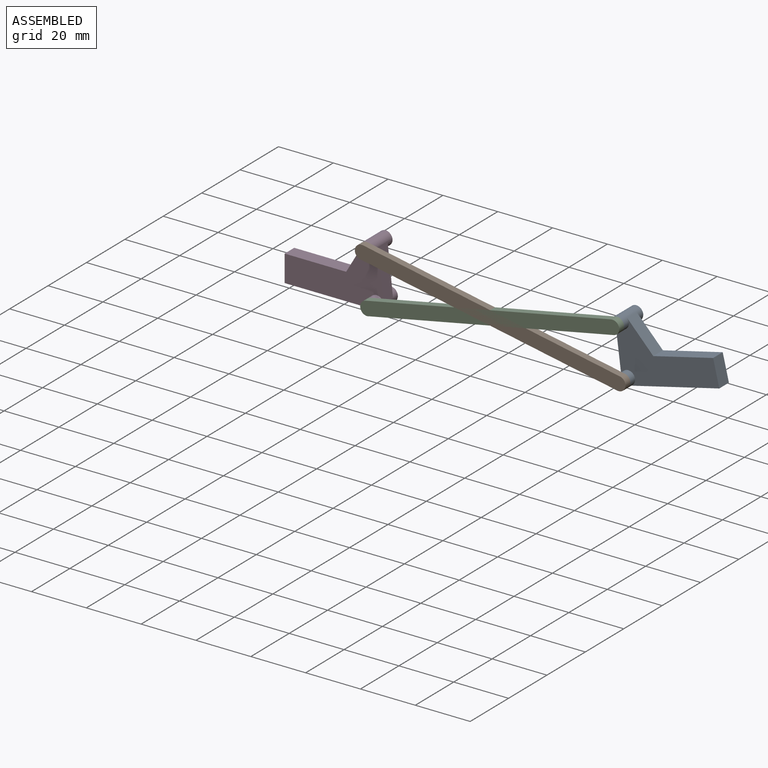
[diagram: assembled view]
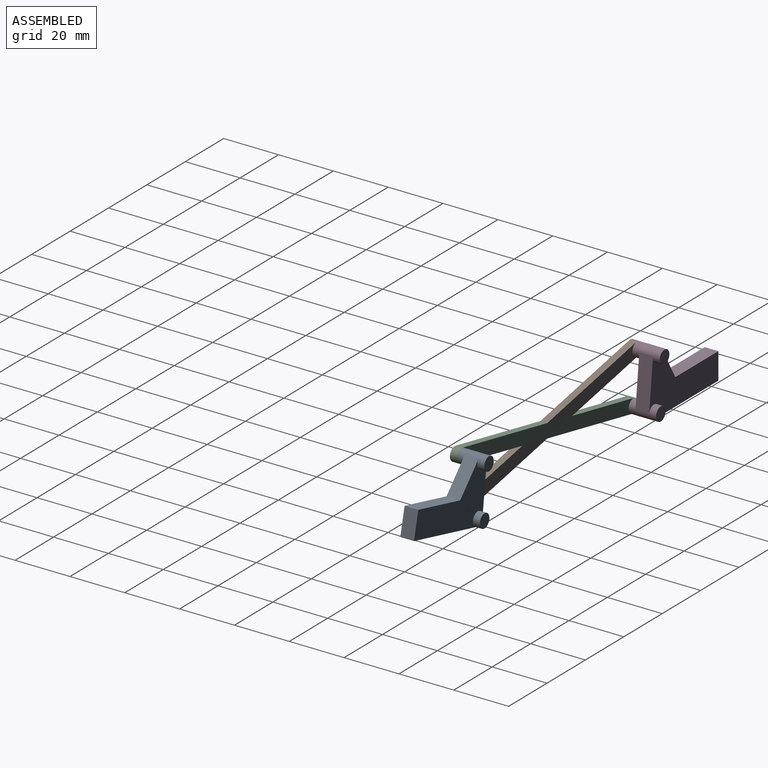
[diagram: assembled view, second angle]
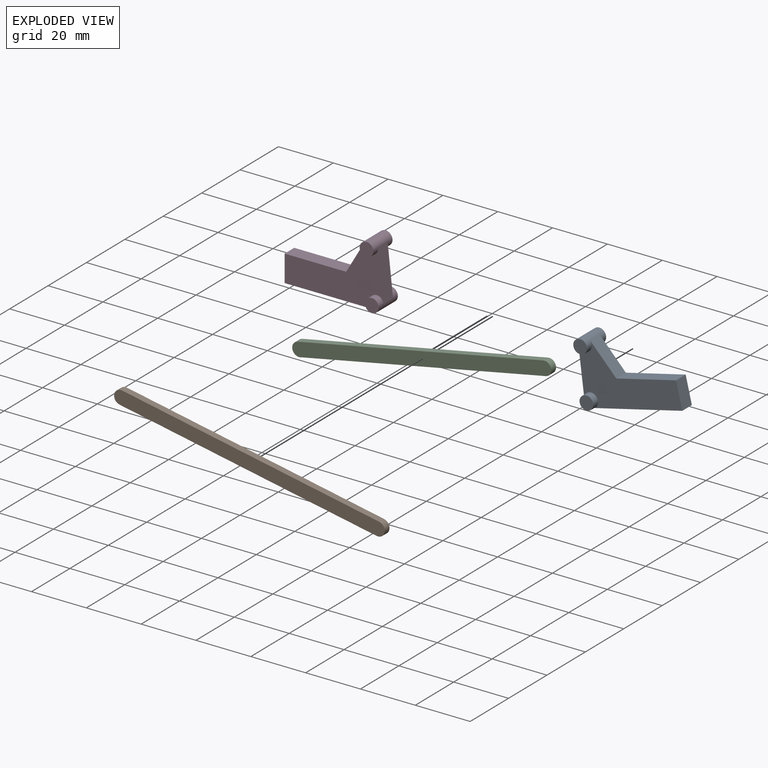
[diagram: exploded view]
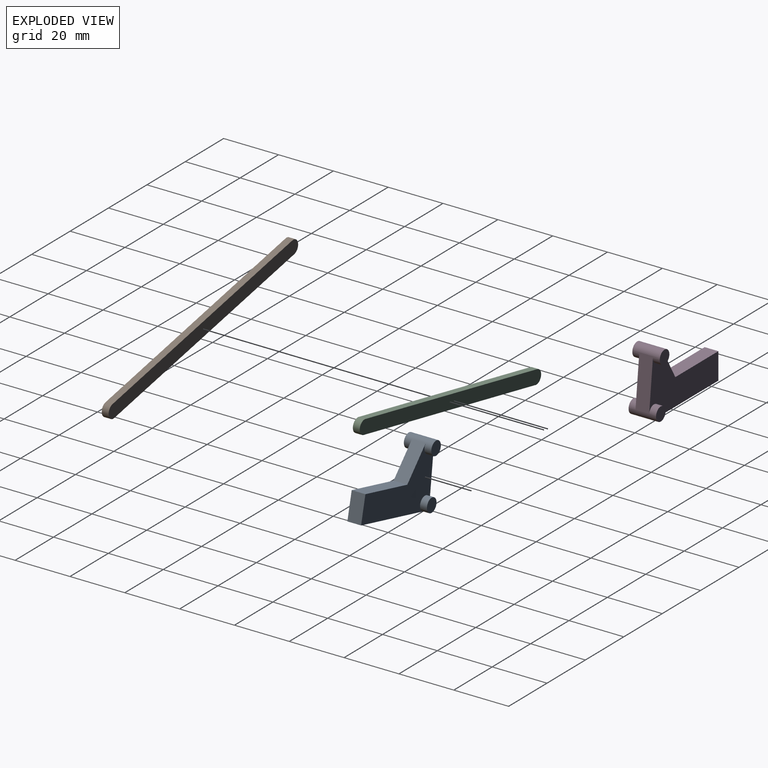
[diagram: exploded view, second angle]
ASSEMBLY  parts=4 mates=4
PART A: 13 faces, bbox 36.1x10x23 mm
  f0: plane 36.04x21.75mm, normal (0,-1,0), area 415mm2, adj f2,f3,f4,f5,f6,f7,f8
  f1: plane 36.04x21.75mm, normal (0,1,0), area 415mm2, adj f2,f3,f4,f5,f6,f7,f8
  f2: cylinder r=2.5mm len=10mm, axis (0,1,0), area 111.2mm2, adj f0,f1,f3,f8,f9,f10
  f3: plane 12.03x7.01mm, normal (-0.86,0,0.5), area 69.6mm2, adj f0,f1,f2,f4
  f4: plane 22.44x5mm, normal (0,0,1), area 112.2mm2, adj f0,f1,f3,f5
  f5: plane 9.71x5mm, normal (-1,0,0), area 48.6mm2, adj f0,f1,f4,f6
  f6: plane 33.55x5mm, normal (0,0,-1), area 167.8mm2, adj f0,f1,f5,f7
  f7: cylinder r=2.5mm len=10mm, axis (0,1,0), area 99.5mm2, adj f0,f1,f6,f8,f11,f12
  f8: plane 17.72x5mm, normal (0.99,0,0.11), area 89.1mm2, adj f0,f1,f2,f7
  f9: plane 5x5mm, normal (0,1,0), area 19.6mm2, adj f2
  f10: plane 5x5mm, normal (0,-1,0), area 19.6mm2, adj f2
  f11: plane 5x5mm, normal (0,1,0), area 19.6mm2, adj f7
  f12: plane 5x5mm, normal (0,-1,0), area 19.6mm2, adj f7
PART B: 6 faces, bbox 99.7x2.5x16.9 mm
  f0: plane 99.73x16.93mm, normal (0,1,0), area 497mm2, adj f1,f2,f3,f4
  f1: cylinder r=2.5mm len=4.98mm, axis (0,-1,0), area 19.6mm2, adj f0,f2,f4,f5
  f2: plane 94.73x11.93mm, normal (0.12,0,0.99), area 238.7mm2, adj f0,f1,f3,f5
  f3: cylinder r=2.5mm len=4.98mm, axis (0,-1,0), area 19.6mm2, adj f0,f2,f4,f5
  f4: plane 94.73x11.93mm, normal (-0.12,0,-0.99), area 238.7mm2, adj f0,f1,f3,f5
  f5: plane 99.73x16.93mm, normal (0,-1,0), area 497mm2, adj f1,f2,f3,f4
PART C: 6 faces, bbox 96x2.5x12.3 mm
  f0: plane 95.96x12.25mm, normal (0,1,0), area 474.4mm2, adj f1,f3,f4,f5
  f1: plane 90.58x7.25mm, normal (-0.08,0,-1), area 227.2mm2, adj f0,f2,f3,f4
  f2: plane 95.96x12.25mm, normal (0,-1,0), area 474.4mm2, adj f1,f3,f4,f5
  f3: cylinder r=2.5mm len=5mm, axis (0,-1,0), area 21mm2, adj f0,f1,f2,f5
  f4: cylinder r=2.5mm len=4.99mm, axis (0,-1,0), area 19.6mm2, adj f0,f1,f2,f5
  f5: plane 90.8x7.23mm, normal (0.08,0,1), area 227.7mm2, adj f0,f2,f3,f4
PART D: same geometry as A
PLACE A rot(axis=(0.12,0,-0.99),180deg) t=(118.6,0,2.95)mm
PLACE B rot(axis=(0,1,0),3.8deg) t=(-1.17,-2.5,0.81)mm
PLACE C rot(axis=(0,-1,0),15.8deg) t=(0.51,-2.5,-3.7)mm
PLACE D at identity fixed
MATE revolute B.f3 <-> D.f2  axis (0,1,0) through (11.65,-5,17.99)mm
MATE revolute A.f2 <-> C.f4  axis (0,-1,0) through (103.1,-5,17.75)mm
MATE revolute A.f7 <-> B.f1  axis (0,-1,0) through (105.38,-5,-0.2)mm
MATE revolute D.f7 <-> C.f3  axis (0,-1,0) through (13.6,-5,0)mm
